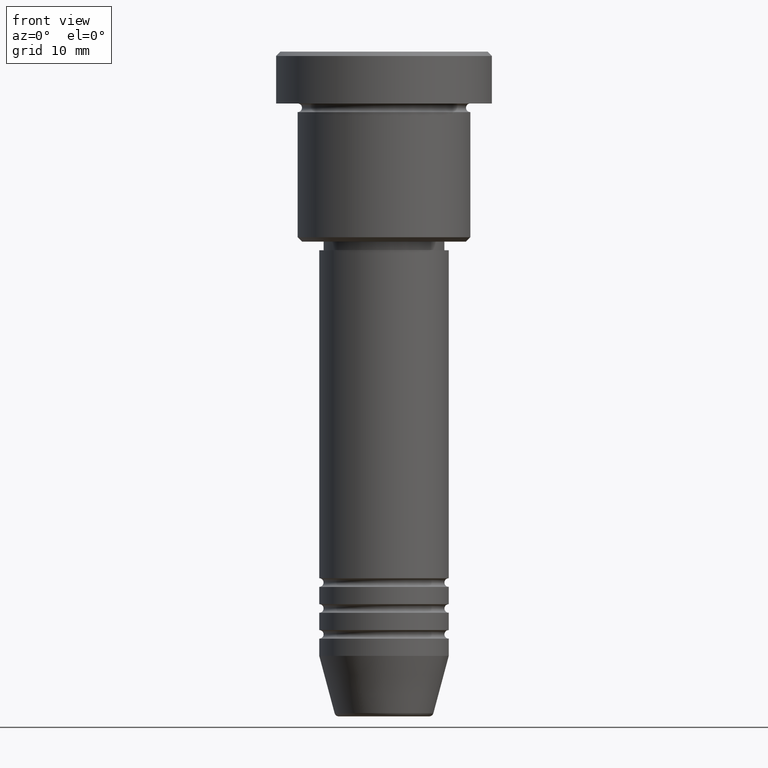
[diagram: clean part render]
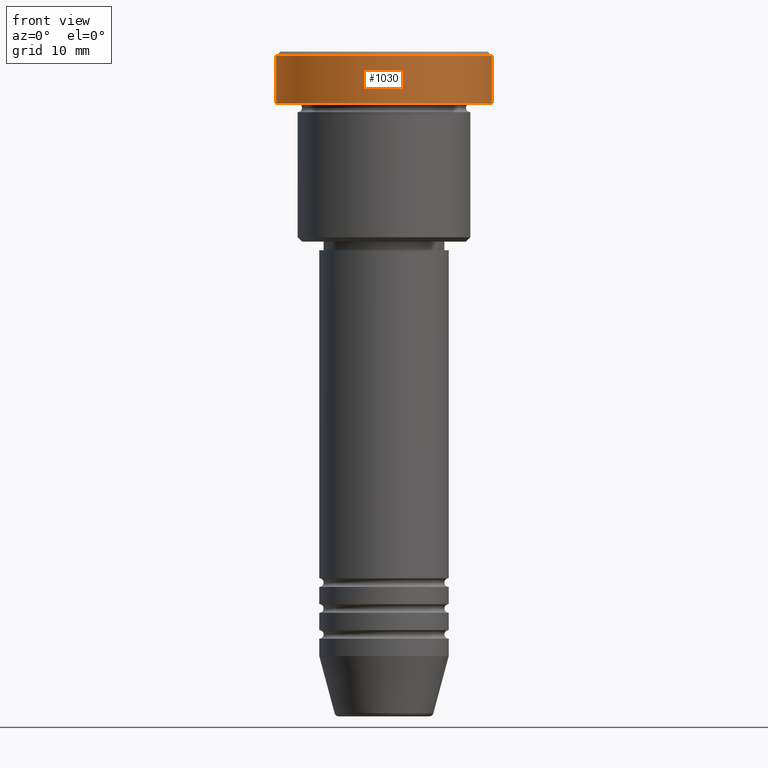
[diagram: same view with one face highlighted and labeled with its STEP entity id]
A machine part, front view. The second image highlights one B-rep face of the part: STEP entity #1030.
In plain terms, the highlighted cylindrical surface (partial cylindrical patch) has radius 12.5 mm, axis along (-0, -0, 1).
Its self-contained STEP definition (entity closure, byte-faithful):
#46 = CARTESIAN_POINT ( 'NONE',  ( -12.50000000000000000, 1.530808498934191521E-15, 0.000000000000000000 ) ) ;
#83 = CARTESIAN_POINT ( 'NONE',  ( 12.50000000000000000, 0.000000000000000000, 0.000000000000000000 ) ) ;
#89 = DIRECTION ( 'NONE',  ( -0.000000000000000000, -0.000000000000000000, 1.000000000000000000 ) ) ;
#98 = CIRCLE ( 'NONE', #1011, 12.50000000000000000 ) ;
#105 = CARTESIAN_POINT ( 'NONE',  ( -12.50000000000000000, 1.530808498934191521E-15, -5.999999999999996447 ) ) ;
#106 = VERTEX_POINT ( 'NONE', #321 ) ;
#165 = EDGE_CURVE ( 'NONE', #420, #1108, #98, .T. ) ;
#198 = EDGE_CURVE ( 'NONE', #420, #365, #794, .T. ) ;
#225 = ORIENTED_EDGE ( 'NONE', *, *, #739, .T. ) ;
#233 = DIRECTION ( 'NONE',  ( 0.000000000000000000, 0.000000000000000000, -1.000000000000000000 ) ) ;
#236 = DIRECTION ( 'NONE',  ( 1.000000000000000000, 0.000000000000000000, 0.000000000000000000 ) ) ;
#239 = FACE_OUTER_BOUND ( 'NONE', #609, .T. ) ;
#321 = CARTESIAN_POINT ( 'NONE',  ( 12.50000000000000000, 0.000000000000000000, -0.4999999999999988343 ) ) ;
#329 = CYLINDRICAL_SURFACE ( 'NONE', #454, 12.50000000000000000 ) ;
#365 = VERTEX_POINT ( 'NONE', #846 ) ;
#376 = VECTOR ( 'NONE', #89, 1000.000000000000000 ) ;
#420 = VERTEX_POINT ( 'NONE', #105 ) ;
#454 = AXIS2_PLACEMENT_3D ( 'NONE', #612, #701, #679 ) ;
#468 = ORIENTED_EDGE ( 'NONE', *, *, #165, .T. ) ;
#510 = DIRECTION ( 'NONE',  ( -0.000000000000000000, -0.000000000000000000, 1.000000000000000000 ) ) ;
#596 = DIRECTION ( 'NONE',  ( 1.000000000000000000, 0.000000000000000000, 0.000000000000000000 ) ) ;
#609 = EDGE_LOOP ( 'NONE', ( #1027, #468, #225, #971 ) ) ;
#610 = CARTESIAN_POINT ( 'NONE',  ( 0.000000000000000000, 0.000000000000000000, -5.999999999999996447 ) ) ;
#612 = CARTESIAN_POINT ( 'NONE',  ( 0.000000000000000000, 0.000000000000000000, 0.000000000000000000 ) ) ;
#679 = DIRECTION ( 'NONE',  ( 1.000000000000000000, 0.000000000000000000, 0.000000000000000000 ) ) ;
#701 = DIRECTION ( 'NONE',  ( -0.000000000000000000, -0.000000000000000000, 1.000000000000000000 ) ) ;
#712 = CARTESIAN_POINT ( 'NONE',  ( 12.50000000000000000, 0.000000000000000000, -5.999999999999996447 ) ) ;
#739 = EDGE_CURVE ( 'NONE', #1108, #106, #975, .T. ) ;
#794 = LINE ( 'NONE', #46, #906 ) ;
#846 = CARTESIAN_POINT ( 'NONE',  ( -12.50000000000000000, 1.530808498934191521E-15, -0.4999999999999988343 ) ) ;
#903 = CIRCLE ( 'NONE', #1066, 12.50000000000000000 ) ;
#906 = VECTOR ( 'NONE', #510, 1000.000000000000000 ) ;
#971 = ORIENTED_EDGE ( 'NONE', *, *, #1076, .T. ) ;
#975 = LINE ( 'NONE', #83, #376 ) ;
#1011 = AXIS2_PLACEMENT_3D ( 'NONE', #610, #1060, #236 ) ;
#1027 = ORIENTED_EDGE ( 'NONE', *, *, #198, .F. ) ;
#1030 = ADVANCED_FACE ( 'NONE', ( #239 ), #329, .T. ) ;
#1050 = CARTESIAN_POINT ( 'NONE',  ( 0.000000000000000000, 0.000000000000000000, -0.4999999999999988343 ) ) ;
#1060 = DIRECTION ( 'NONE',  ( -0.000000000000000000, -0.000000000000000000, 1.000000000000000000 ) ) ;
#1066 = AXIS2_PLACEMENT_3D ( 'NONE', #1050, #233, #596 ) ;
#1076 = EDGE_CURVE ( 'NONE', #106, #365, #903, .T. ) ;
#1108 = VERTEX_POINT ( 'NONE', #712 ) ;